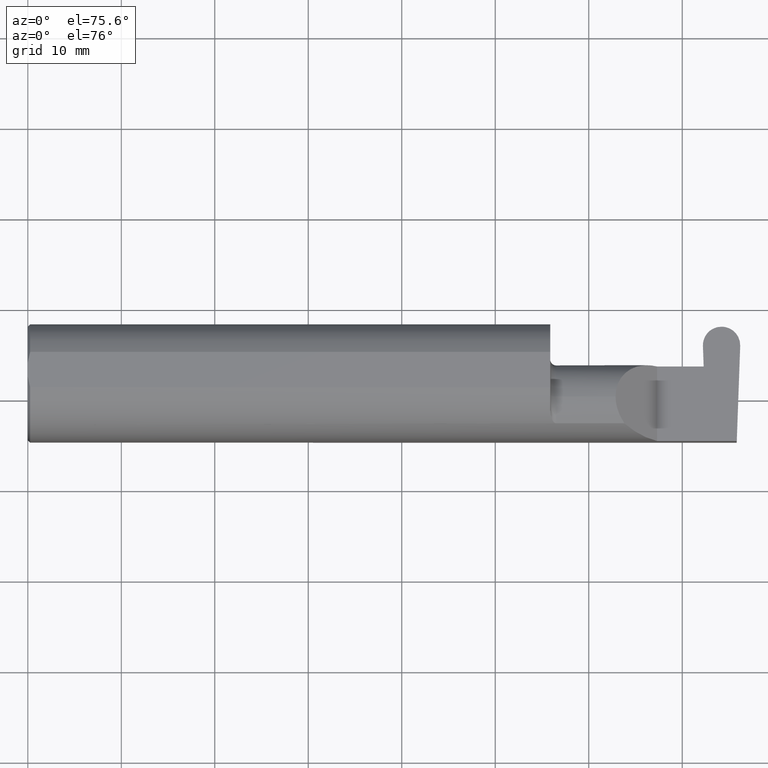
[diagram: clean part render]
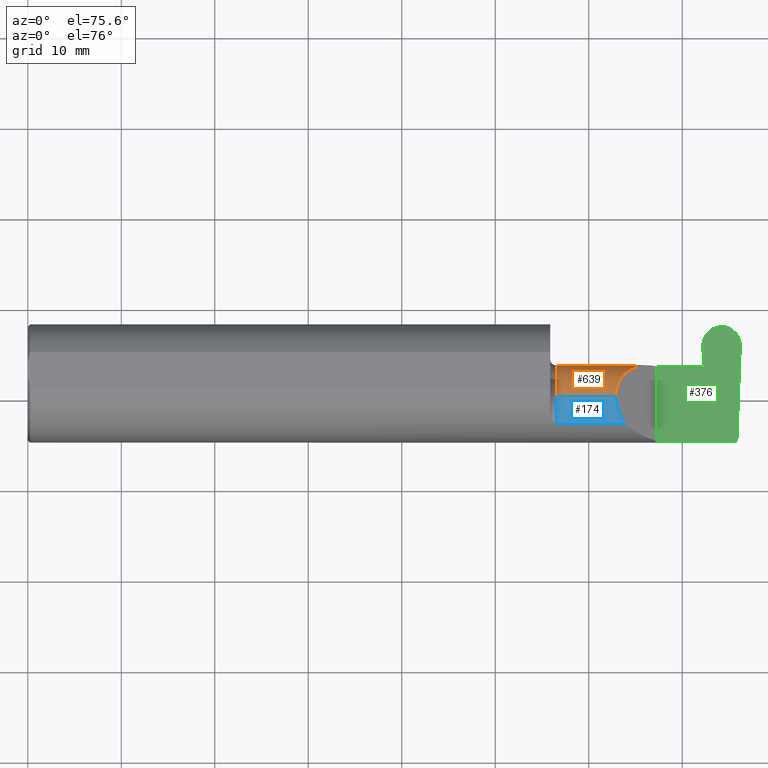
[diagram: same view with three faces highlighted in distinct colors, each labeled with its STEP entity id]
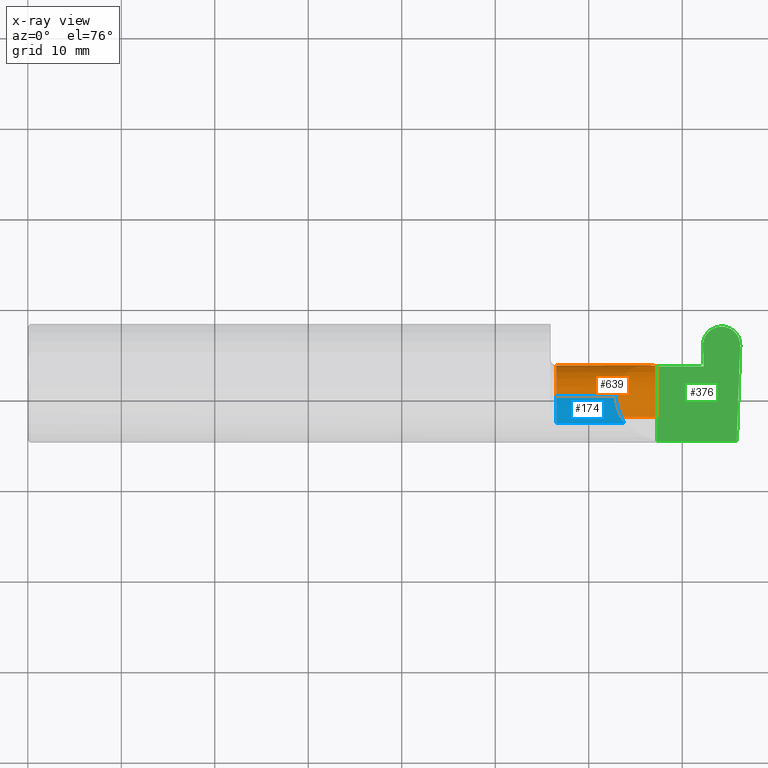
[diagram: x-ray of the same camera — body ghosted, the three highlighted faces saturated]
A machine part, auxiliary view with three faces highlighted in distinct colors.
The next image is the same camera in x-ray (body ghosted, the three faces saturated) — at least one of them is partly hidden behind the body in this view.
Their STEP definitions:

[orange] entity #639 — the highlighted cylindrical surface (partial cylindrical patch) has radius 4.445 mm, axis along (-1, -0, -0).
#12 = EDGE_CURVE ( 'NONE', #288, #556, #439, .T. ) ;
#16 = CARTESIAN_POINT ( 'NONE',  ( 2.834942811380418259, 0.07414999999999977165, 0.000000000000000000 ) ) ;
#20 = CARTESIAN_POINT ( 'NONE',  ( 2.834871741199312734, 0.07407892981889409312, -0.004071607948635301046 ) ) ;
#26 = AXIS2_PLACEMENT_3D ( 'NONE', #606, #231, #55 ) ;
#35 = CARTESIAN_POINT ( 'NONE',  ( 2.200000000000000178, -0.1008499999999999952, -0.1750000000000000444 ) ) ;
#55 = DIRECTION ( 'NONE',  ( 0.000000000000000000, 0.000000000000000000, 1.000000000000000000 ) ) ;
#56 = ORIENTED_EDGE ( 'NONE', *, *, #588, .F. ) ;
#86 = ORIENTED_EDGE ( 'NONE', *, *, #347, .T. ) ;
#87 = CARTESIAN_POINT ( 'NONE',  ( 2.847896006995016549, 0.07056399972053259417, -0.1057442486376092700 ) ) ;
#90 = EDGE_CURVE ( 'NONE', #556, #757, #750, .T. ) ;
#105 = VERTEX_POINT ( 'NONE', #166 ) ;
#108 = EDGE_CURVE ( 'NONE', #633, #757, #360, .T. ) ;
#112 = CARTESIAN_POINT ( 'NONE',  ( 2.650000000000000355, 0.07414999999999999369, 9.797174393178813824E-17 ) ) ;
#118 =( BOUNDED_CURVE ( )  B_SPLINE_CURVE ( 3, ( #787, #785, #465, #658 ),
 .UNSPECIFIED., .F., .F. ) 
 B_SPLINE_CURVE_WITH_KNOTS ( ( 4, 4 ),
 ( 0.000000000000000000, 1.570796326794896336 ),
 .UNSPECIFIED. ) 
 CURVE ( )  GEOMETRIC_REPRESENTATION_ITEM ( )  RATIONAL_B_SPLINE_CURVE ( ( 1.000000000000000000, 0.8047378541243650485, 0.8047378541243650485, 1.000000000000000000 ) ) 
 REPRESENTATION_ITEM ( '' )  );
#137 = FACE_OUTER_BOUND ( 'NONE', #396, .T. ) ;
#146 = CARTESIAN_POINT ( 'NONE',  ( 2.849201506090199842, -0.1008500000000000368, -0.1750000000000000444 ) ) ;
#158 = CARTESIAN_POINT ( 'NONE',  ( 2.200000000000000178, 0.07414999999999999369, 9.797174393178813824E-17 ) ) ;
#161 = ORIENTED_EDGE ( 'NONE', *, *, #12, .F. ) ;
#166 = CARTESIAN_POINT ( 'NONE',  ( 2.846094497492901887, 0.07404339472834124691, -0.006107411922953763853 ) ) ;
#198 = DIRECTION ( 'NONE',  ( 0.000000000000000000, 0.000000000000000000, 1.000000000000000000 ) ) ;
#216 = CARTESIAN_POINT ( 'NONE',  ( 2.849170060624871326, -0.001152430219572287730, -0.1750000000000000722 ) ) ;
#231 = DIRECTION ( 'NONE',  ( -1.000000000000000000, -0.000000000000000000, -0.000000000000000000 ) ) ;
#239 = CARTESIAN_POINT ( 'NONE',  ( 2.200000000000000178, 0.07404339472834127467, -0.006107411922952042140 ) ) ;
#244 = CYLINDRICAL_SURFACE ( 'NONE', #406, 0.1750000000000000444 ) ;
#266 = CARTESIAN_POINT ( 'NONE',  ( 2.834907276289865052, 0.07411446490944693932, -0.002035803974317650523 ) ) ;
#288 = VERTEX_POINT ( 'NONE', #692 ) ;
#319 = CARTESIAN_POINT ( 'NONE',  ( 2.849201506090199842, -0.1008500000000000368, -0.1750000000000000444 ) ) ;
#337 = CARTESIAN_POINT ( 'NONE',  ( 2.846094497492901887, 0.07404339472834124691, -0.006107411922953763853 ) ) ;
#343 = EDGE_CURVE ( 'NONE', #633, #105, #700, .T. ) ;
#347 = EDGE_CURVE ( 'NONE', #288, #478, #118, .T. ) ;
#349 = DIRECTION ( 'NONE',  ( 1.000000000000000000, 0.000000000000000000, 0.000000000000000000 ) ) ;
#351 = B_SPLINE_CURVE_WITH_KNOTS ( 'NONE', 3,
 ( #521, #20, #266, #16 ),
 .UNSPECIFIED., .F., .F.,
 ( 4, 4 ),
 ( 0.000000000000000000, 1.000000000000000000 ),
 .UNSPECIFIED. ) ;
#355 = DIRECTION ( 'NONE',  ( -1.000000000000000000, -0.000000000000000000, -0.000000000000000000 ) ) ;
#360 = LINE ( 'NONE', #35, #481 ) ;
#362 = VECTOR ( 'NONE', #349, 39.37007874015748143 ) ;
#387 = VERTEX_POINT ( 'NONE', #598 ) ;
#396 = EDGE_LOOP ( 'NONE', ( #527, #505, #531, #161, #86, #485, #575, #56 ) ) ;
#406 = AXIS2_PLACEMENT_3D ( 'NONE', #578, #440, #198 ) ;
#439 = LINE ( 'NONE', #705, #644 ) ;
#440 = DIRECTION ( 'NONE',  ( -1.000000000000000000, -0.000000000000000000, -0.000000000000000000 ) ) ;
#465 = CARTESIAN_POINT ( 'NONE',  ( 2.547487373415290968, 0.07415000000000000757, 0.1025126265847084162 ) ) ;
#478 = VERTEX_POINT ( 'NONE', #112 ) ;
#481 = VECTOR ( 'NONE', #355, 39.37007874015748143 ) ;
#485 = ORIENTED_EDGE ( 'NONE', *, *, #581, .T. ) ;
#486 = LINE ( 'NONE', #158, #362 ) ;
#505 = ORIENTED_EDGE ( 'NONE', *, *, #108, .T. ) ;
#521 = CARTESIAN_POINT ( 'NONE',  ( 2.834836206108759527, 0.07404339472834126079, -0.006107411922952949400 ) ) ;
#527 = ORIENTED_EDGE ( 'NONE', *, *, #343, .F. ) ;
#531 = ORIENTED_EDGE ( 'NONE', *, *, #90, .F. ) ;
#537 = VECTOR ( 'NONE', #605, 39.37007874015748143 ) ;
#556 = VERTEX_POINT ( 'NONE', #793 ) ;
#575 = ORIENTED_EDGE ( 'NONE', *, *, #788, .F. ) ;
#578 = CARTESIAN_POINT ( 'NONE',  ( 2.200000000000000178, -0.1008500000000000091, 0.000000000000000000 ) ) ;
#581 = EDGE_CURVE ( 'NONE', #478, #812, #486, .T. ) ;
#588 = EDGE_CURVE ( 'NONE', #105, #387, #805, .T. ) ;
#598 = CARTESIAN_POINT ( 'NONE',  ( 2.834836206108759527, 0.07404339472834126079, -0.006107411922952949400 ) ) ;
#605 = DIRECTION ( 'NONE',  ( -1.000000000000000000, -0.000000000000000000, -0.000000000000000000 ) ) ;
#606 = CARTESIAN_POINT ( 'NONE',  ( 2.225000000000000089, -0.1008500000000000091, 0.000000000000000000 ) ) ;
#630 = DIRECTION ( 'NONE',  ( -1.000000000000000000, -0.000000000000000000, -0.000000000000000000 ) ) ;
#633 = VERTEX_POINT ( 'NONE', #319 ) ;
#639 = ADVANCED_FACE ( 'NONE', ( #137 ), #244, .T. ) ;
#644 = VECTOR ( 'NONE', #630, 39.37007874015748143 ) ;
#658 = CARTESIAN_POINT ( 'NONE',  ( 2.650000000000000355, 0.07414999999999999369, 9.797174393178813824E-17 ) ) ;
#692 = CARTESIAN_POINT ( 'NONE',  ( 2.474999999999998757, -0.1008500000000000091, 0.1750000000000000444 ) ) ;
#700 =( BOUNDED_CURVE ( )  B_SPLINE_CURVE ( 3, ( #146, #216, #87, #337 ),
 .UNSPECIFIED., .F., .T. ) 
 B_SPLINE_CURVE_WITH_KNOTS ( ( 4, 4 ),
 ( 3.159045946109736214, 4.694935687864654206 ),
 .UNSPECIFIED. ) 
 CURVE ( )  GEOMETRIC_REPRESENTATION_ITEM ( )  RATIONAL_B_SPLINE_CURVE ( ( 1.000000000000000000, 0.8128932002257887035, 0.8128932002257887035, 1.000000000000000000 ) ) 
 REPRESENTATION_ITEM ( '' )  );
#705 = CARTESIAN_POINT ( 'NONE',  ( 2.200000000000000178, -0.1008500000000000091, 0.1750000000000000444 ) ) ;
#713 = CARTESIAN_POINT ( 'NONE',  ( 2.834942811380418259, 0.07414999999999977165, 0.000000000000000000 ) ) ;
#717 = CARTESIAN_POINT ( 'NONE',  ( 2.225000000000000089, -0.1008500000000000091, -0.1750000000000000167 ) ) ;
#750 = CIRCLE ( 'NONE', #26, 0.1750000000000000167 ) ;
#757 = VERTEX_POINT ( 'NONE', #717 ) ;
#785 = CARTESIAN_POINT ( 'NONE',  ( 2.474999999999998757, 0.001662626584708354381, 0.1750000000000000167 ) ) ;
#787 = CARTESIAN_POINT ( 'NONE',  ( 2.474999999999998757, -0.1008500000000000091, 0.1750000000000000444 ) ) ;
#788 = EDGE_CURVE ( 'NONE', #387, #812, #351, .T. ) ;
#793 = CARTESIAN_POINT ( 'NONE',  ( 2.225000000000000089, -0.1008500000000000368, 0.1750000000000000167 ) ) ;
#805 = LINE ( 'NONE', #239, #537 ) ;
#812 = VERTEX_POINT ( 'NONE', #713 ) ;

[blue] entity #174 — the highlighted cylindrical surface (partial cylindrical patch) has radius 4.445 mm, axis along (-1, -0, -0).
#3 = CARTESIAN_POINT ( 'NONE',  ( 2.225000000000000089, -0.1008500000000000091, 0.000000000000000000 ) ) ;
#12 = EDGE_CURVE ( 'NONE', #288, #556, #439, .T. ) ;
#17 = ORIENTED_EDGE ( 'NONE', *, *, #767, .T. ) ;
#59 = AXIS2_PLACEMENT_3D ( 'NONE', #751, #182, #688 ) ;
#78 = ORIENTED_EDGE ( 'NONE', *, *, #366, .T. ) ;
#84 = LINE ( 'NONE', #329, #500 ) ;
#119 = DIRECTION ( 'NONE',  ( -1.000000000000000000, -0.000000000000000000, -0.000000000000000000 ) ) ;
#141 = EDGE_LOOP ( 'NONE', ( #78, #225, #330, #17 ) ) ;
#174 = ADVANCED_FACE ( 'NONE', ( #620 ), #497, .T. ) ;
#182 = DIRECTION ( 'NONE',  ( -1.000000000000000000, -0.000000000000000000, -0.000000000000000000 ) ) ;
#193 = AXIS2_PLACEMENT_3D ( 'NONE', #3, #119, #378 ) ;
#225 = ORIENTED_EDGE ( 'NONE', *, *, #12, .T. ) ;
#229 = VERTEX_POINT ( 'NONE', #457 ) ;
#288 = VERTEX_POINT ( 'NONE', #692 ) ;
#329 = CARTESIAN_POINT ( 'NONE',  ( 2.533868310000000346, -0.2080850024789289987, 0.1382955322609668025 ) ) ;
#330 = ORIENTED_EDGE ( 'NONE', *, *, #689, .F. ) ;
#339 = CARTESIAN_POINT ( 'NONE',  ( 2.474999999999998757, -0.1008500000000000091, 0.1750000000000000444 ) ) ;
#366 = EDGE_CURVE ( 'NONE', #229, #288, #491, .T. ) ;
#378 = DIRECTION ( 'NONE',  ( 0.000000000000000000, 0.000000000000000000, 1.000000000000000000 ) ) ;
#439 = LINE ( 'NONE', #705, #644 ) ;
#457 = CARTESIAN_POINT ( 'NONE',  ( 2.511704467739031887, -0.2080850024789288877, 0.1382955322609669413 ) ) ;
#459 = DIRECTION ( 'NONE',  ( 1.000000000000000000, 0.000000000000000000, 0.000000000000000000 ) ) ;
#461 = CIRCLE ( 'NONE', #193, 0.1750000000000000167 ) ;
#474 = CARTESIAN_POINT ( 'NONE',  ( 2.487690731615565642, -0.1771157075472508391, 0.1623092683844331863 ) ) ;
#491 =( BOUNDED_CURVE ( )  B_SPLINE_CURVE ( 3, ( #778, #474, #791, #339 ),
 .UNSPECIFIED., .F., .F. ) 
 B_SPLINE_CURVE_WITH_KNOTS ( ( 4, 4 ),
 ( 5.623622464215682015, 6.283185307179586232 ),
 .UNSPECIFIED. ) 
 CURVE ( )  GEOMETRIC_REPRESENTATION_ITEM ( )  RATIONAL_B_SPLINE_CURVE ( ( 1.000000000000000000, 0.9640754331822832812, 0.9640754331822832812, 1.000000000000000000 ) ) 
 REPRESENTATION_ITEM ( '' )  );
#497 = CYLINDRICAL_SURFACE ( 'NONE', #59, 0.1750000000000000444 ) ;
#500 = VECTOR ( 'NONE', #459, 39.37007874015748143 ) ;
#556 = VERTEX_POINT ( 'NONE', #793 ) ;
#592 = VERTEX_POINT ( 'NONE', #615 ) ;
#615 = CARTESIAN_POINT ( 'NONE',  ( 2.225000000000000089, -0.2080850024789289987, 0.1382955322609667470 ) ) ;
#620 = FACE_OUTER_BOUND ( 'NONE', #141, .T. ) ;
#630 = DIRECTION ( 'NONE',  ( -1.000000000000000000, -0.000000000000000000, -0.000000000000000000 ) ) ;
#644 = VECTOR ( 'NONE', #630, 39.37007874015748143 ) ;
#688 = DIRECTION ( 'NONE',  ( 0.000000000000000000, 0.000000000000000000, 1.000000000000000000 ) ) ;
#689 = EDGE_CURVE ( 'NONE', #592, #556, #461, .T. ) ;
#692 = CARTESIAN_POINT ( 'NONE',  ( 2.474999999999998757, -0.1008500000000000091, 0.1750000000000000444 ) ) ;
#705 = CARTESIAN_POINT ( 'NONE',  ( 2.200000000000000178, -0.1008500000000000091, 0.1750000000000000444 ) ) ;
#751 = CARTESIAN_POINT ( 'NONE',  ( 2.200000000000000178, -0.1008500000000000091, 0.000000000000000000 ) ) ;
#767 = EDGE_CURVE ( 'NONE', #592, #229, #84, .T. ) ;
#778 = CARTESIAN_POINT ( 'NONE',  ( 2.511704467739031887, -0.2080850024789288877, 0.1382955322609669413 ) ) ;
#791 = CARTESIAN_POINT ( 'NONE',  ( 2.474999999999998757, -0.1400387324517230747, 0.1750000000000000444 ) ) ;
#793 = CARTESIAN_POINT ( 'NONE',  ( 2.225000000000000089, -0.1008500000000000368, 0.1750000000000000167 ) ) ;

[green] entity #376 — the highlighted planar face has unit normal (-0, 0, -1).
#13 = CARTESIAN_POINT ( 'NONE',  ( 2.969012533631873119, 0.2471500000000000918, 2.705682905371335382E-18 ) ) ;
#30 =( BOUNDED_CURVE ( )  B_SPLINE_CURVE ( 3, ( #77, #470, #13, #463 ),
 .UNSPECIFIED., .F., .T. ) 
 B_SPLINE_CURVE_WITH_KNOTS ( ( 4, 4 ),
 ( 1.637964922114649946, 3.237953570749842136 ),
 .UNSPECIFIED. ) 
 CURVE ( )  GEOMETRIC_REPRESENTATION_ITEM ( )  RATIONAL_B_SPLINE_CURVE ( ( 1.000000000000000000, 0.7978071872141907495, 0.7978071872141907495, 1.000000000000000000 ) ) 
 REPRESENTATION_ITEM ( '' )  );
#34 = DIRECTION ( 'NONE',  ( -0.000000000000000000, 1.000000000000000000, -0.000000000000000000 ) ) ;
#41 = ORIENTED_EDGE ( 'NONE', *, *, #456, .F. ) ;
#44 = VECTOR ( 'NONE', #358, 39.37007874015748143 ) ;
#47 = EDGE_CURVE ( 'NONE', #371, #794, #442, .T. ) ;
#73 = ORIENTED_EDGE ( 'NONE', *, *, #47, .F. ) ;
#77 = CARTESIAN_POINT ( 'NONE',  ( 2.999872990785927396, 0.1635087207221616878, 0.000000000000000000 ) ) ;
#81 = CARTESIAN_POINT ( 'NONE',  ( 2.845984104502489398, 0.07414999999999977165, 0.000000000000000000 ) ) ;
#96 = EDGE_CURVE ( 'NONE', #812, #817, #176, .T. ) ;
#112 = CARTESIAN_POINT ( 'NONE',  ( 2.650000000000000355, 0.07414999999999999369, 9.797174393178813824E-17 ) ) ;
#158 = CARTESIAN_POINT ( 'NONE',  ( 2.200000000000000178, 0.07414999999999999369, 9.797174393178813824E-17 ) ) ;
#165 = LINE ( 'NONE', #432, #44 ) ;
#175 = LINE ( 'NONE', #412, #338 ) ;
#176 = LINE ( 'NONE', #487, #547 ) ;
#180 = ORIENTED_EDGE ( 'NONE', *, *, #739, .F. ) ;
#183 = ORIENTED_EDGE ( 'NONE', *, *, #760, .T. ) ;
#201 = CARTESIAN_POINT ( 'NONE',  ( 2.842863629214074095, 0.1635087207221616323, 0.000000000000000000 ) ) ;
#207 = CARTESIAN_POINT ( 'NONE',  ( 2.999872990785927396, 0.1635087207221616878, 0.000000000000000000 ) ) ;
#210 = CARTESIAN_POINT ( 'NONE',  ( 2.842784520300991158, 0.1657741035941333874, 0.000000000000000000 ) ) ;
#215 = EDGE_LOOP ( 'NONE', ( #41, #503, #180, #361, #566, #781, #570, #73, #183 ) ) ;
#234 = LINE ( 'NONE', #558, #764 ) ;
#255 = VECTOR ( 'NONE', #612, 39.37007874015748854 ) ;
#285 = DIRECTION ( 'NONE',  ( 1.000000000000000000, -0.000000000000000000, -0.000000000000000000 ) ) ;
#305 = VERTEX_POINT ( 'NONE', #515 ) ;
#310 = CARTESIAN_POINT ( 'NONE',  ( 2.920795643315781120, 0.2471499999999999808, 0.000000000000000000 ) ) ;
#314 = CARTESIAN_POINT ( 'NONE',  ( 2.873724086368128372, 0.2471500000000001473, 1.543549517755541833E-17 ) ) ;
#333 = PLANE ( 'NONE',  #458 ) ;
#335 = VERTEX_POINT ( 'NONE', #650 ) ;
#338 = VECTOR ( 'NONE', #285, 39.37007874015748143 ) ;
#349 = DIRECTION ( 'NONE',  ( 1.000000000000000000, 0.000000000000000000, 0.000000000000000000 ) ) ;
#358 = DIRECTION ( 'NONE',  ( -1.000000000000000000, -0.000000000000000000, -0.000000000000000000 ) ) ;
#361 = ORIENTED_EDGE ( 'NONE', *, *, #96, .F. ) ;
#362 = VECTOR ( 'NONE', #349, 39.37007874015748143 ) ;
#371 = VERTEX_POINT ( 'NONE', #207 ) ;
#376 = ADVANCED_FACE ( 'NONE', ( #410 ), #333, .F. ) ;
#380 = VERTEX_POINT ( 'NONE', #471 ) ;
#381 = LINE ( 'NONE', #210, #656 ) ;
#386 = CARTESIAN_POINT ( 'NONE',  ( 2.841163163816639692, 0.2122036785419297300, 1.942305813555199541E-17 ) ) ;
#405 = CARTESIAN_POINT ( 'NONE',  ( 3.000000000000000444, -0.2500000000000000555, 0.000000000000000000 ) ) ;
#410 = FACE_OUTER_BOUND ( 'NONE', #215, .T. ) ;
#412 = CARTESIAN_POINT ( 'NONE',  ( -0.002039370078740339320, 0.2471499999999999808, 0.000000000000000000 ) ) ;
#429 = DIRECTION ( 'NONE',  ( 1.000000000000000000, -0.000000000000000000, -0.000000000000000000 ) ) ;
#432 = CARTESIAN_POINT ( 'NONE',  ( 4.499279347985562423E-32, -0.2498499999999999610, 3.673940397442054938E-16 ) ) ;
#438 = EDGE_CURVE ( 'NONE', #794, #380, #165, .T. ) ;
#442 = LINE ( 'NONE', #507, #255 ) ;
#456 = EDGE_CURVE ( 'NONE', #305, #766, #175, .T. ) ;
#458 = AXIS2_PLACEMENT_3D ( 'NONE', #405, #602, #654 ) ;
#463 = CARTESIAN_POINT ( 'NONE',  ( 2.921940976684220370, 0.2471499999999999808, 0.000000000000000000 ) ) ;
#466 = CARTESIAN_POINT ( 'NONE',  ( 2.985438186182187259, -0.2498499999999999888, 0.000000000000000000 ) ) ;
#470 = CARTESIAN_POINT ( 'NONE',  ( 3.001573456183361799, 0.2122036785419296745, -1.281880052625236500E-18 ) ) ;
#471 = CARTESIAN_POINT ( 'NONE',  ( 2.650000000000000355, -0.2498499999999999610, 4.286263797015729199E-17 ) ) ;
#478 = VERTEX_POINT ( 'NONE', #112 ) ;
#486 = LINE ( 'NONE', #158, #362 ) ;
#487 = CARTESIAN_POINT ( 'NONE',  ( 2.845984104502489398, 0.07414999999999977165, 0.000000000000000000 ) ) ;
#503 = ORIENTED_EDGE ( 'NONE', *, *, #726, .T. ) ;
#507 = CARTESIAN_POINT ( 'NONE',  ( 2.999952099699010333, 0.1657741035941333874, 0.000000000000000000 ) ) ;
#515 = CARTESIAN_POINT ( 'NONE',  ( 2.920795643315781120, 0.2471499999999999808, 0.000000000000000000 ) ) ;
#547 = VECTOR ( 'NONE', #429, 39.37007874015748143 ) ;
#558 = CARTESIAN_POINT ( 'NONE',  ( 2.650000000000000355, -0.2500000000000000555, 4.286263797015729199E-17 ) ) ;
#566 = ORIENTED_EDGE ( 'NONE', *, *, #581, .F. ) ;
#570 = ORIENTED_EDGE ( 'NONE', *, *, #438, .F. ) ;
#581 = EDGE_CURVE ( 'NONE', #478, #812, #486, .T. ) ;
#597 = CARTESIAN_POINT ( 'NONE',  ( 2.921940976684220370, 0.2471499999999999808, 0.000000000000000000 ) ) ;
#599 = EDGE_CURVE ( 'NONE', #380, #478, #234, .T. ) ;
#602 = DIRECTION ( 'NONE',  ( -1.224646799147351975E-16, 0.000000000000000000, -1.000000000000000000 ) ) ;
#612 = DIRECTION ( 'NONE',  ( -0.03489949670249561930, -0.9993908270190959842, 0.000000000000000000 ) ) ;
#646 = DIRECTION ( 'NONE',  ( -0.03489949670249602176, 0.9993908270190959842, -0.000000000000000000 ) ) ;
#650 = CARTESIAN_POINT ( 'NONE',  ( 2.842863629214074095, 0.1635087207221616323, 0.000000000000000000 ) ) ;
#654 = DIRECTION ( 'NONE',  ( -1.000000000000000000, 0.000000000000000000, 1.224646799147351975E-16 ) ) ;
#656 = VECTOR ( 'NONE', #646, 39.37007874015748143 ) ;
#713 = CARTESIAN_POINT ( 'NONE',  ( 2.834942811380418259, 0.07414999999999977165, 0.000000000000000000 ) ) ;
#722 =( BOUNDED_CURVE ( )  B_SPLINE_CURVE ( 3, ( #310, #314, #386, #201 ),
 .UNSPECIFIED., .F., .F. ) 
 B_SPLINE_CURVE_WITH_KNOTS ( ( 4, 4 ),
 ( 3.045231736429742764, 4.645220385064936508 ),
 .UNSPECIFIED. ) 
 CURVE ( )  GEOMETRIC_REPRESENTATION_ITEM ( )  RATIONAL_B_SPLINE_CURVE ( ( 1.000000000000000000, 0.7978071872141905274, 0.7978071872141905274, 1.000000000000000000 ) ) 
 REPRESENTATION_ITEM ( '' )  );
#726 = EDGE_CURVE ( 'NONE', #305, #335, #722, .T. ) ;
#739 = EDGE_CURVE ( 'NONE', #817, #335, #381, .T. ) ;
#760 = EDGE_CURVE ( 'NONE', #371, #766, #30, .T. ) ;
#764 = VECTOR ( 'NONE', #34, 39.37007874015748143 ) ;
#766 = VERTEX_POINT ( 'NONE', #597 ) ;
#781 = ORIENTED_EDGE ( 'NONE', *, *, #599, .F. ) ;
#794 = VERTEX_POINT ( 'NONE', #466 ) ;
#812 = VERTEX_POINT ( 'NONE', #713 ) ;
#817 = VERTEX_POINT ( 'NONE', #81 ) ;